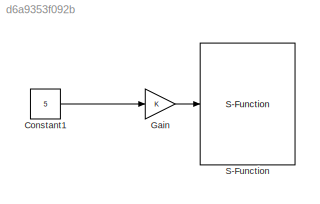
MODEL slx_d6a9353f092b
KIND model
CONFIG AbsTol = auto
CONFIG EnableMultiTasking = on
CONFIG FixedStep = 0.001
CONFIG MaxStep = auto
CONFIG MinStep = auto
CONFIG RelTol = 1e-3
CONFIG SampleTimeConstraint = Unconstrained
CONFIG Solver = FixedStepDiscrete
CONFIG SolverName = FixedStepDiscrete
CONFIG StartTime = 0.0
CONFIG StopTime = 60
BLOCK [Constant] Constant1
  Value = 5
BLOCK [Gain] Gain
  OutDataTypeStr = Inherit: Inherit via internal rule
  ParamDataTypeStr = Inherit: Inherit via internal rule
  SaturateOnIntegerOverflow = off
BLOCK [S-Function] S-Function
  EnableBusSupport = off
  FunctionName = advantechpci1723
  Parameters = CHANNEL_ARG,RESET_ARG,INIT_VAL_ARG,SAMP_TIME_ARG,PCI_SLOT_ARG,PCI_BUS_ARG
  Ports = [1]
  SFcnIsStateOwnerBlock = off
  SFunctionDeploymentMode = off
LINE Constant1:1 -> Gain:1
LINE Gain:1 -> S-Function:1
